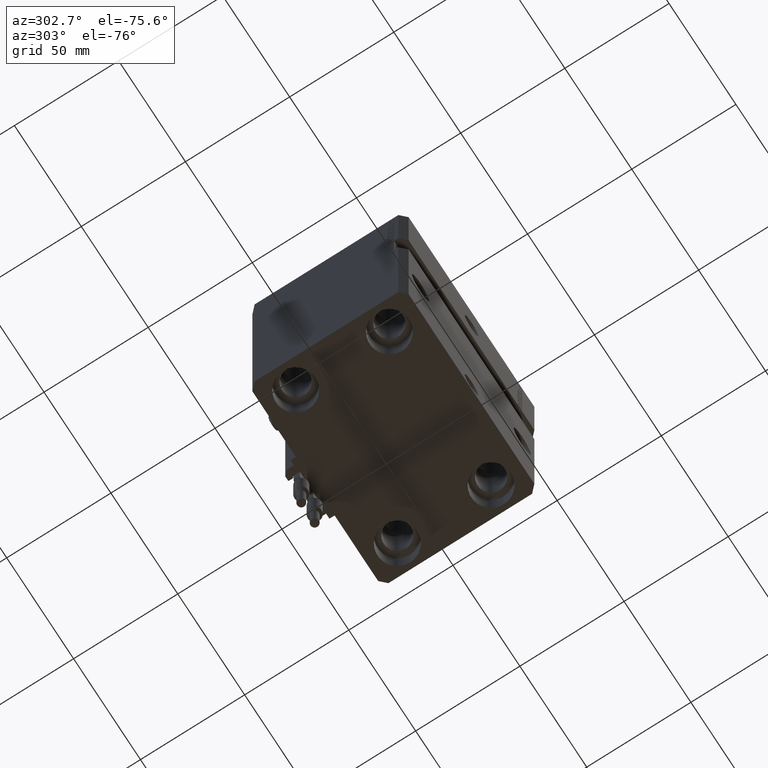
[diagram: clean part render]
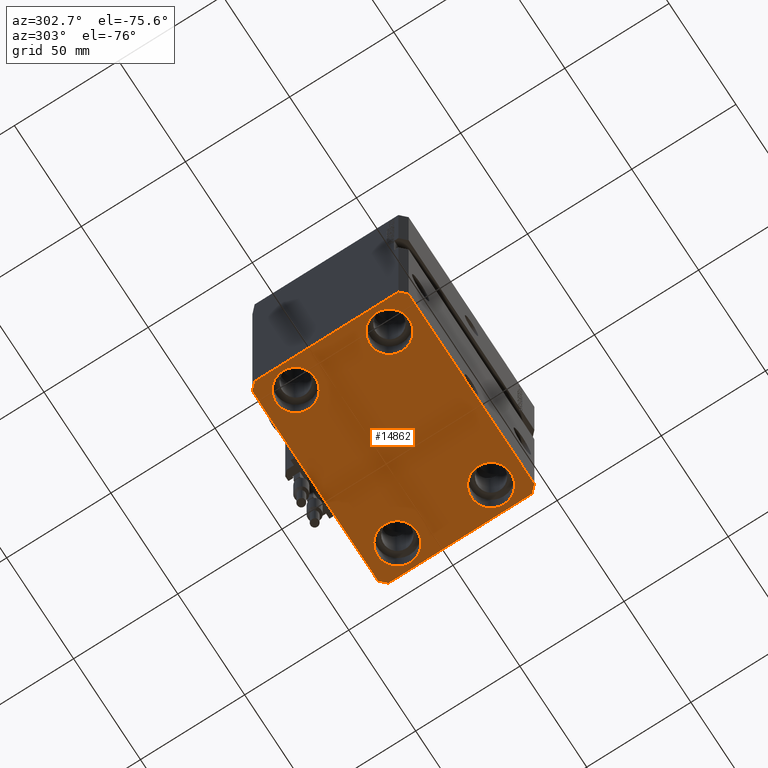
[diagram: same view with one face highlighted and labeled with its STEP entity id]
A machine part, auxiliary view. The second image highlights one B-rep face of the part: STEP entity #14862.
In plain terms, the highlighted planar face has unit normal (0, 0, 1).
Its self-contained STEP definition (entity closure, byte-faithful):
#1252 = VERTEX_POINT ( 'NONE', #3951 ) ;
#1456 = DIRECTION ( 'NONE',  ( 1.000000000000000000, -1.476360405086644309E-16, 0.000000000000000000 ) ) ;
#1602 = ORIENTED_EDGE ( 'NONE', *, *, #36811, .T. ) ;
#1621 = VERTEX_POINT ( 'NONE', #10387 ) ;
#2919 = VERTEX_POINT ( 'NONE', #30103 ) ;
#3094 = EDGE_LOOP ( 'NONE', ( #50740, #4587 ) ) ;
#3214 = ORIENTED_EDGE ( 'NONE', *, *, #45446, .F. ) ;
#3773 = EDGE_CURVE ( 'NONE', #50547, #43282, #45687, .T. ) ;
#3951 = CARTESIAN_POINT ( 'NONE',  ( -28.50000000000000355, 22.50000000000000000, -125.0000000000000000 ) ) ;
#4027 = CARTESIAN_POINT ( 'NONE',  ( 38.00000000000000711, 22.50000000000001421, -125.0000000000000000 ) ) ;
#4587 = ORIENTED_EDGE ( 'NONE', *, *, #36627, .T. ) ;
#6304 = CARTESIAN_POINT ( 'NONE',  ( 38.00000000000000711, -22.50000000000000000, -125.0000000000000000 ) ) ;
#6556 = DIRECTION ( 'NONE',  ( -0.000000000000000000, -0.000000000000000000, 1.000000000000000000 ) ) ;
#6727 = CIRCLE ( 'NONE', #12601, 9.500000000000001776 ) ;
#6946 = PLANE ( 'NONE',  #14181 ) ;
#7010 = EDGE_CURVE ( 'NONE', #43282, #50547, #29849, .T. ) ;
#7108 = LINE ( 'NONE', #43549, #22706 ) ;
#7258 = AXIS2_PLACEMENT_3D ( 'NONE', #6304, #46699, #50893 ) ;
#7706 = EDGE_CURVE ( 'NONE', #26002, #12017, #32156, .T. ) ;
#8969 = ORIENTED_EDGE ( 'NONE', *, *, #34921, .F. ) ;
#10353 = ORIENTED_EDGE ( 'NONE', *, *, #39015, .T. ) ;
#10387 = CARTESIAN_POINT ( 'NONE',  ( -28.50000000000000355, -22.50000000000000000, -125.0000000000000000 ) ) ;
#10883 = FACE_BOUND ( 'NONE', #3094, .T. ) ;
#11131 = DIRECTION ( 'NONE',  ( 0.000000000000000000, 0.000000000000000000, 1.000000000000000000 ) ) ;
#12017 = VERTEX_POINT ( 'NONE', #13682 ) ;
#12470 = CARTESIAN_POINT ( 'NONE',  ( -38.00000000000000711, -22.50000000000000000, -125.0000000000000000 ) ) ;
#12601 = AXIS2_PLACEMENT_3D ( 'NONE', #51214, #40186, #15273 ) ;
#12869 = DIRECTION ( 'NONE',  ( 7.441712302741091634E-15, 1.000000000000000000, 0.000000000000000000 ) ) ;
#12889 = CIRCLE ( 'NONE', #27965, 9.500000000000001776 ) ;
#13000 = DIRECTION ( 'NONE',  ( 1.000000000000000000, 0.000000000000000000, 0.000000000000000000 ) ) ;
#13367 = EDGE_CURVE ( 'NONE', #12017, #28801, #50343, .T. ) ;
#13614 = CARTESIAN_POINT ( 'NONE',  ( 47.00000000000056843, 37.49999999999999289, -125.0000000000000000 ) ) ;
#13682 = CARTESIAN_POINT ( 'NONE',  ( 47.00000000000000000, -37.50000000000000711, -125.0000000000000000 ) ) ;
#14094 = EDGE_CURVE ( 'NONE', #27645, #1252, #51810, .T. ) ;
#14148 = CARTESIAN_POINT ( 'NONE',  ( 47.00000000000000000, -37.50000000000000711, -125.0000000000000000 ) ) ;
#14181 = AXIS2_PLACEMENT_3D ( 'NONE', #15569, #11131, #27119 ) ;
#14422 = DIRECTION ( 'NONE',  ( 1.000000000000000000, 0.000000000000000000, 0.000000000000000000 ) ) ;
#14430 = VECTOR ( 'NONE', #16393, 1000.000000000000000 ) ;
#14685 = CARTESIAN_POINT ( 'NONE',  ( 47.50000000000000711, -22.50000000000000000, -125.0000000000000000 ) ) ;
#14687 = AXIS2_PLACEMENT_3D ( 'NONE', #38324, #22587, #50133 ) ;
#14862 = ADVANCED_FACE ( 'NONE', ( #34988, #31551, #15830, #10883, #26867 ), #6946, .F. ) ;
#14880 = ORIENTED_EDGE ( 'NONE', *, *, #46946, .F. ) ;
#15273 = DIRECTION ( 'NONE',  ( 1.000000000000000000, 0.000000000000000000, 0.000000000000000000 ) ) ;
#15569 = CARTESIAN_POINT ( 'NONE',  ( 0.000000000000000000, 0.000000000000000000, -125.0000000000000000 ) ) ;
#15830 = FACE_BOUND ( 'NONE', #45369, .T. ) ;
#16176 = CIRCLE ( 'NONE', #51384, 9.500000000000001776 ) ;
#16393 = DIRECTION ( 'NONE',  ( -1.000000000000000000, 7.381802025433175941E-17, 0.000000000000000000 ) ) ;
#16418 = CARTESIAN_POINT ( 'NONE',  ( -47.00000000000001421, 37.50000000000000000, -125.0000000000000000 ) ) ;
#16466 = ORIENTED_EDGE ( 'NONE', *, *, #7706, .F. ) ;
#16492 = VERTEX_POINT ( 'NONE', #39703 ) ;
#16642 = AXIS2_PLACEMENT_3D ( 'NONE', #41699, #6556, #14422 ) ;
#16829 = CARTESIAN_POINT ( 'NONE',  ( -50.00000000000000000, -34.50000000000000000, -125.0000000000000000 ) ) ;
#18336 = EDGE_LOOP ( 'NONE', ( #27680, #33440 ) ) ;
#18680 = CARTESIAN_POINT ( 'NONE',  ( -47.50000000000000711, -22.50000000000000000, -125.0000000000000000 ) ) ;
#18774 = AXIS2_PLACEMENT_3D ( 'NONE', #12470, #23234, #51559 ) ;
#19837 = CARTESIAN_POINT ( 'NONE',  ( -50.00000000000000000, -34.50000000000000000, -125.0000000000000000 ) ) ;
#20148 = VECTOR ( 'NONE', #40451, 1000.000000000000114 ) ;
#20186 = DIRECTION ( 'NONE',  ( -0.7071067811865483499, -0.7071067811865466846, 0.000000000000000000 ) ) ;
#20961 = VERTEX_POINT ( 'NONE', #24967 ) ;
#20992 = LINE ( 'NONE', #48535, #44643 ) ;
#21146 = CARTESIAN_POINT ( 'NONE',  ( 50.00000000000051870, 34.49999999999995026, -125.0000000000000000 ) ) ;
#22533 = ORIENTED_EDGE ( 'NONE', *, *, #29860, .F. ) ;
#22548 = CARTESIAN_POINT ( 'NONE',  ( 50.00000000000051870, 34.49999999999995026, -125.0000000000000000 ) ) ;
#22587 = DIRECTION ( 'NONE',  ( -0.000000000000000000, -0.000000000000000000, 1.000000000000000000 ) ) ;
#22706 = VECTOR ( 'NONE', #20186, 1000.000000000000000 ) ;
#23234 = DIRECTION ( 'NONE',  ( -0.000000000000000000, -0.000000000000000000, 1.000000000000000000 ) ) ;
#23434 = VERTEX_POINT ( 'NONE', #13614 ) ;
#23752 = CARTESIAN_POINT ( 'NONE',  ( 47.00000000000056843, 37.49999999999999289, -125.0000000000000000 ) ) ;
#24281 = DIRECTION ( 'NONE',  ( -0.000000000000000000, -0.000000000000000000, 1.000000000000000000 ) ) ;
#24650 = ORIENTED_EDGE ( 'NONE', *, *, #13367, .F. ) ;
#24967 = CARTESIAN_POINT ( 'NONE',  ( -50.00000000000001421, 34.50000000000000000, -125.0000000000000000 ) ) ;
#25582 = CARTESIAN_POINT ( 'NONE',  ( -47.00000000000000000, -37.49999999999999289, -125.0000000000000000 ) ) ;
#26002 = VERTEX_POINT ( 'NONE', #31544 ) ;
#26033 = EDGE_LOOP ( 'NONE', ( #29725, #1602 ) ) ;
#26867 = FACE_OUTER_BOUND ( 'NONE', #31102, .T. ) ;
#27119 = DIRECTION ( 'NONE',  ( 1.000000000000000000, 0.000000000000000000, -0.000000000000000000 ) ) ;
#27251 = CARTESIAN_POINT ( 'NONE',  ( -47.50000000000000711, 22.50000000000000000, -125.0000000000000000 ) ) ;
#27645 = VERTEX_POINT ( 'NONE', #27251 ) ;
#27680 = ORIENTED_EDGE ( 'NONE', *, *, #7010, .T. ) ;
#27965 = AXIS2_PLACEMENT_3D ( 'NONE', #29797, #44784, #33474 ) ;
#28065 = VERTEX_POINT ( 'NONE', #16418 ) ;
#28554 = EDGE_CURVE ( 'NONE', #2919, #16492, #6727, .T. ) ;
#28772 = AXIS2_PLACEMENT_3D ( 'NONE', #4027, #44415, #36535 ) ;
#28801 = VERTEX_POINT ( 'NONE', #30440 ) ;
#29502 = EDGE_CURVE ( 'NONE', #47720, #26002, #40710, .T. ) ;
#29725 = ORIENTED_EDGE ( 'NONE', *, *, #35468, .T. ) ;
#29797 = CARTESIAN_POINT ( 'NONE',  ( -38.00000000000000711, 22.50000000000000000, -125.0000000000000000 ) ) ;
#29831 = CARTESIAN_POINT ( 'NONE',  ( 28.50000000000000355, -22.50000000000000000, -125.0000000000000000 ) ) ;
#29849 = CIRCLE ( 'NONE', #7258, 9.500000000000001776 ) ;
#29860 = EDGE_CURVE ( 'NONE', #28065, #20961, #7108, .T. ) ;
#30103 = CARTESIAN_POINT ( 'NONE',  ( 47.50000000000000711, 22.50000000000001421, -125.0000000000000000 ) ) ;
#30440 = CARTESIAN_POINT ( 'NONE',  ( 50.00000000000000000, -34.50000000000000711, -125.0000000000000000 ) ) ;
#30665 = DIRECTION ( 'NONE',  ( -0.7071067811865361374, 0.7071067811865588970, 0.000000000000000000 ) ) ;
#31102 = EDGE_LOOP ( 'NONE', ( #45828, #3214, #8969, #24650, #16466, #42385, #14880, #22533 ) ) ;
#31496 = VECTOR ( 'NONE', #30665, 1000.000000000000114 ) ;
#31544 = CARTESIAN_POINT ( 'NONE',  ( -47.00000000000000000, -37.49999999999999289, -125.0000000000000000 ) ) ;
#31551 = FACE_BOUND ( 'NONE', #18336, .T. ) ;
#32156 = LINE ( 'NONE', #25582, #39943 ) ;
#32579 = EDGE_CURVE ( 'NONE', #23434, #28065, #47878, .T. ) ;
#32911 = CARTESIAN_POINT ( 'NONE',  ( -50.00000000000001421, 34.50000000000000000, -125.0000000000000000 ) ) ;
#32974 = CIRCLE ( 'NONE', #18774, 9.500000000000001776 ) ;
#33327 = VECTOR ( 'NONE', #42198, 1000.000000000000000 ) ;
#33440 = ORIENTED_EDGE ( 'NONE', *, *, #3773, .T. ) ;
#33474 = DIRECTION ( 'NONE',  ( 1.000000000000000000, 0.000000000000000000, 0.000000000000000000 ) ) ;
#34335 = LINE ( 'NONE', #22548, #31496 ) ;
#34721 = VERTEX_POINT ( 'NONE', #18680 ) ;
#34921 = EDGE_CURVE ( 'NONE', #28801, #44217, #20992, .T. ) ;
#34988 = FACE_BOUND ( 'NONE', #26033, .T. ) ;
#35468 = EDGE_CURVE ( 'NONE', #34721, #1621, #16176, .T. ) ;
#36535 = DIRECTION ( 'NONE',  ( 1.000000000000000000, 0.000000000000000000, 0.000000000000000000 ) ) ;
#36596 = CARTESIAN_POINT ( 'NONE',  ( -38.00000000000000711, -22.50000000000000000, -125.0000000000000000 ) ) ;
#36602 = LINE ( 'NONE', #32911, #41666 ) ;
#36627 = EDGE_CURVE ( 'NONE', #1252, #27645, #12889, .T. ) ;
#36811 = EDGE_CURVE ( 'NONE', #1621, #34721, #32974, .T. ) ;
#38324 = CARTESIAN_POINT ( 'NONE',  ( 38.00000000000000711, -22.50000000000000000, -125.0000000000000000 ) ) ;
#39015 = EDGE_CURVE ( 'NONE', #16492, #2919, #51418, .T. ) ;
#39703 = CARTESIAN_POINT ( 'NONE',  ( 28.50000000000000355, 22.50000000000001421, -125.0000000000000000 ) ) ;
#39943 = VECTOR ( 'NONE', #1456, 1000.000000000000000 ) ;
#40186 = DIRECTION ( 'NONE',  ( -0.000000000000000000, -0.000000000000000000, 1.000000000000000000 ) ) ;
#40451 = DIRECTION ( 'NONE',  ( 0.7071067811865491270, -0.7071067811865459074, 0.000000000000000000 ) ) ;
#40710 = LINE ( 'NONE', #16829, #20148 ) ;
#40806 = DIRECTION ( 'NONE',  ( 2.011273595335428326E-16, -1.000000000000000000, 0.000000000000000000 ) ) ;
#41666 = VECTOR ( 'NONE', #40806, 1000.000000000000000 ) ;
#41699 = CARTESIAN_POINT ( 'NONE',  ( -38.00000000000000711, 22.50000000000000000, -125.0000000000000000 ) ) ;
#42198 = DIRECTION ( 'NONE',  ( 0.7071067811865483499, 0.7071067811865466846, 0.000000000000000000 ) ) ;
#42385 = ORIENTED_EDGE ( 'NONE', *, *, #29502, .F. ) ;
#43015 = ORIENTED_EDGE ( 'NONE', *, *, #28554, .T. ) ;
#43282 = VERTEX_POINT ( 'NONE', #29831 ) ;
#43549 = CARTESIAN_POINT ( 'NONE',  ( -47.00000000000001421, 37.50000000000000000, -125.0000000000000000 ) ) ;
#44217 = VERTEX_POINT ( 'NONE', #21146 ) ;
#44415 = DIRECTION ( 'NONE',  ( -0.000000000000000000, -0.000000000000000000, 1.000000000000000000 ) ) ;
#44643 = VECTOR ( 'NONE', #12869, 1000.000000000000000 ) ;
#44784 = DIRECTION ( 'NONE',  ( -0.000000000000000000, -0.000000000000000000, 1.000000000000000000 ) ) ;
#45369 = EDGE_LOOP ( 'NONE', ( #10353, #43015 ) ) ;
#45446 = EDGE_CURVE ( 'NONE', #44217, #23434, #34335, .T. ) ;
#45687 = CIRCLE ( 'NONE', #14687, 9.500000000000001776 ) ;
#45828 = ORIENTED_EDGE ( 'NONE', *, *, #32579, .F. ) ;
#46699 = DIRECTION ( 'NONE',  ( -0.000000000000000000, -0.000000000000000000, 1.000000000000000000 ) ) ;
#46946 = EDGE_CURVE ( 'NONE', #20961, #47720, #36602, .T. ) ;
#47720 = VERTEX_POINT ( 'NONE', #19837 ) ;
#47878 = LINE ( 'NONE', #23752, #14430 ) ;
#48535 = CARTESIAN_POINT ( 'NONE',  ( 50.00000000000000000, -34.50000000000000711, -125.0000000000000000 ) ) ;
#50133 = DIRECTION ( 'NONE',  ( 1.000000000000000000, 0.000000000000000000, 0.000000000000000000 ) ) ;
#50343 = LINE ( 'NONE', #14148, #33327 ) ;
#50547 = VERTEX_POINT ( 'NONE', #14685 ) ;
#50740 = ORIENTED_EDGE ( 'NONE', *, *, #14094, .T. ) ;
#50893 = DIRECTION ( 'NONE',  ( 1.000000000000000000, 0.000000000000000000, 0.000000000000000000 ) ) ;
#51214 = CARTESIAN_POINT ( 'NONE',  ( 38.00000000000000711, 22.50000000000001421, -125.0000000000000000 ) ) ;
#51384 = AXIS2_PLACEMENT_3D ( 'NONE', #36596, #24281, #13000 ) ;
#51418 = CIRCLE ( 'NONE', #28772, 9.500000000000001776 ) ;
#51559 = DIRECTION ( 'NONE',  ( 1.000000000000000000, 0.000000000000000000, 0.000000000000000000 ) ) ;
#51810 = CIRCLE ( 'NONE', #16642, 9.500000000000001776 ) ;